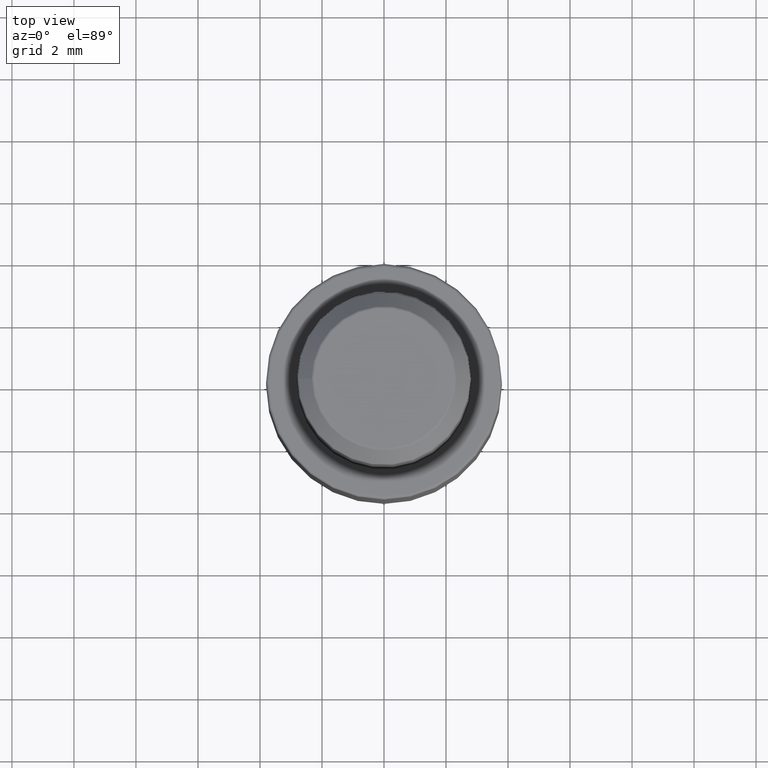
[diagram: clean part render]
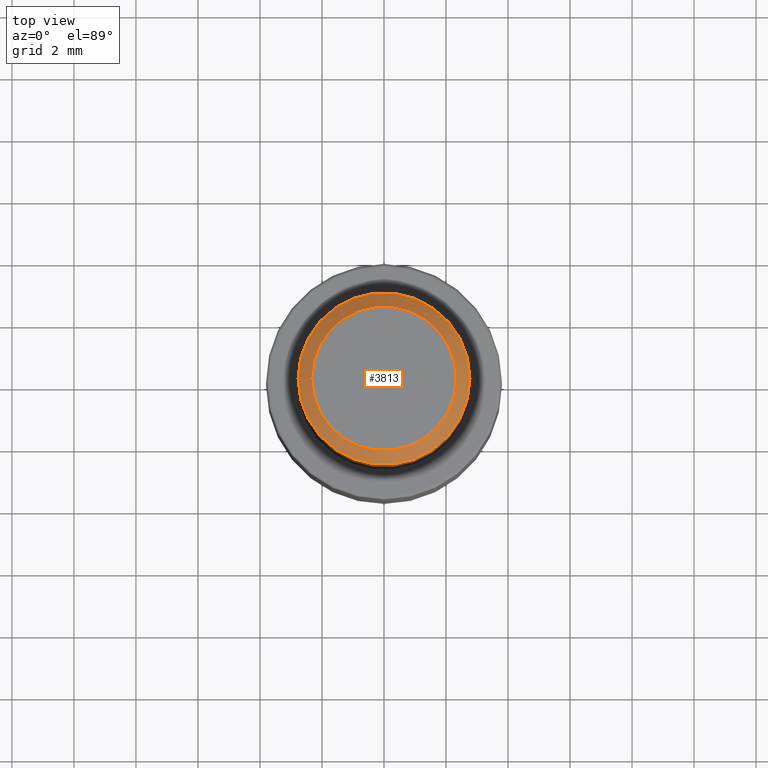
[diagram: same view with one face highlighted and labeled with its STEP entity id]
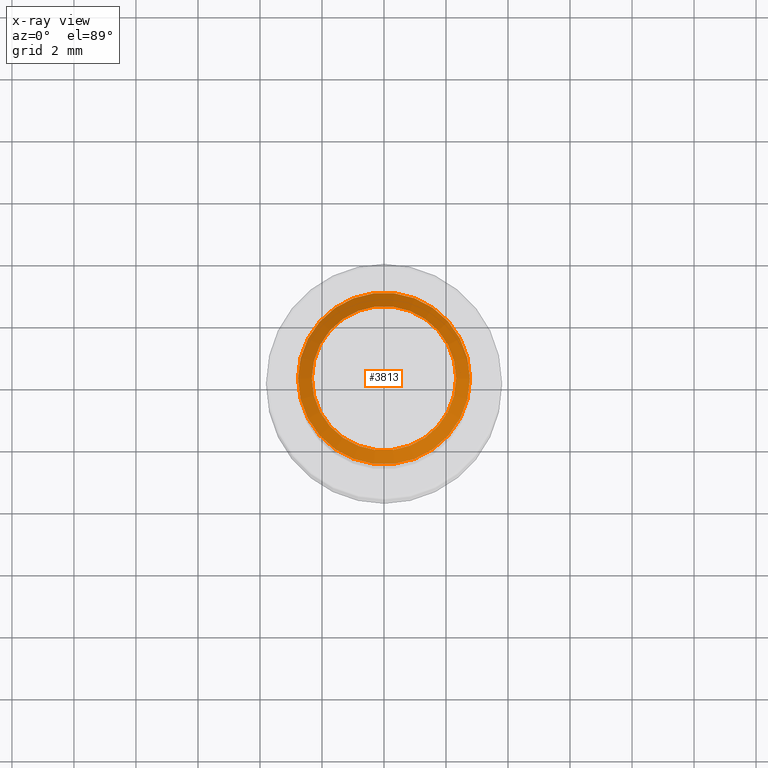
[diagram: x-ray of the same camera — body ghosted, the highlighted face saturated]
A machine part, top view. The second image highlights one B-rep face of the part: STEP entity #3813.
The next image is the same camera in x-ray: the body ghosted, the highlighted face saturated — about 0% of this face is hidden behind the body in this view.
In plain terms, the highlighted conical surface has half-angle 45 deg.
Its self-contained STEP definition (entity closure, byte-faithful):
#76 = EDGE_LOOP ( 'NONE', ( #2203 ) ) ;
#129 = VERTEX_POINT ( 'NONE', #5080 ) ;
#141 = DIRECTION ( 'NONE',  ( 1.000000000000000000, 0.000000000000000000, 0.000000000000000000 ) ) ;
#284 = CARTESIAN_POINT ( 'NONE',  ( 0.000000000000000000, 0.000000000000000000, 20.52928932188135036 ) ) ;
#541 = CIRCLE ( 'NONE', #5815, 2.770710678118653014 ) ;
#735 = CARTESIAN_POINT ( 'NONE',  ( 0.000000000000000000, 0.000000000000000000, 20.97071067811865674 ) ) ;
#1186 = FACE_BOUND ( 'NONE', #4492, .T. ) ;
#1412 = DIRECTION ( 'NONE',  ( -1.000000000000000000, 0.000000000000000000, 0.000000000000000000 ) ) ;
#1958 = DIRECTION ( 'NONE',  ( -0.000000000000000000, -0.000000000000000000, -1.000000000000000000 ) ) ;
#2145 = CIRCLE ( 'NONE', #4445, 2.329289321881351960 ) ;
#2203 = ORIENTED_EDGE ( 'NONE', *, *, #3650, .T. ) ;
#3109 = DIRECTION ( 'NONE',  ( -1.000000000000000000, 0.000000000000000000, 0.000000000000000000 ) ) ;
#3361 = VERTEX_POINT ( 'NONE', #6843 ) ;
#3650 = EDGE_CURVE ( 'NONE', #129, #129, #541, .T. ) ;
#3751 = DIRECTION ( 'NONE',  ( 0.000000000000000000, 0.000000000000000000, -1.000000000000000000 ) ) ;
#3813 = ADVANCED_FACE ( 'NONE', ( #5322, #1186 ), #5861, .T. ) ;
#4217 = AXIS2_PLACEMENT_3D ( 'NONE', #6572, #3751, #3109 ) ;
#4362 = ORIENTED_EDGE ( 'NONE', *, *, #4638, .T. ) ;
#4445 = AXIS2_PLACEMENT_3D ( 'NONE', #735, #1958, #141 ) ;
#4492 = EDGE_LOOP ( 'NONE', ( #4362 ) ) ;
#4638 = EDGE_CURVE ( 'NONE', #3361, #3361, #2145, .T. ) ;
#5080 = CARTESIAN_POINT ( 'NONE',  ( -2.770710678118653014, 0.000000000000000000, 20.52928932188135036 ) ) ;
#5322 = FACE_OUTER_BOUND ( 'NONE', #76, .T. ) ;
#5815 = AXIS2_PLACEMENT_3D ( 'NONE', #284, #6686, #1412 ) ;
#5861 = CONICAL_SURFACE ( 'NONE', #4217, 2.300000000000006484, 0.7853981633974447263 ) ;
#6572 = CARTESIAN_POINT ( 'NONE',  ( 0.000000000000000000, 0.000000000000000000, 21.00000000000000000 ) ) ;
#6686 = DIRECTION ( 'NONE',  ( -0.000000000000000000, -0.000000000000000000, 1.000000000000000000 ) ) ;
#6843 = CARTESIAN_POINT ( 'NONE',  ( 2.329289321881351960, 0.000000000000000000, 20.97071067811865674 ) ) ;